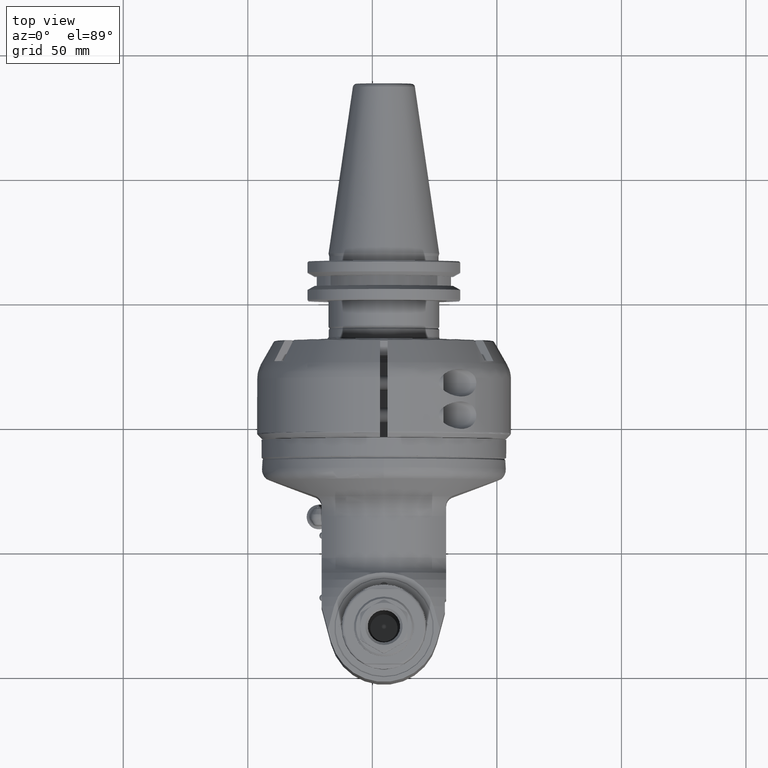
[diagram: clean part render]
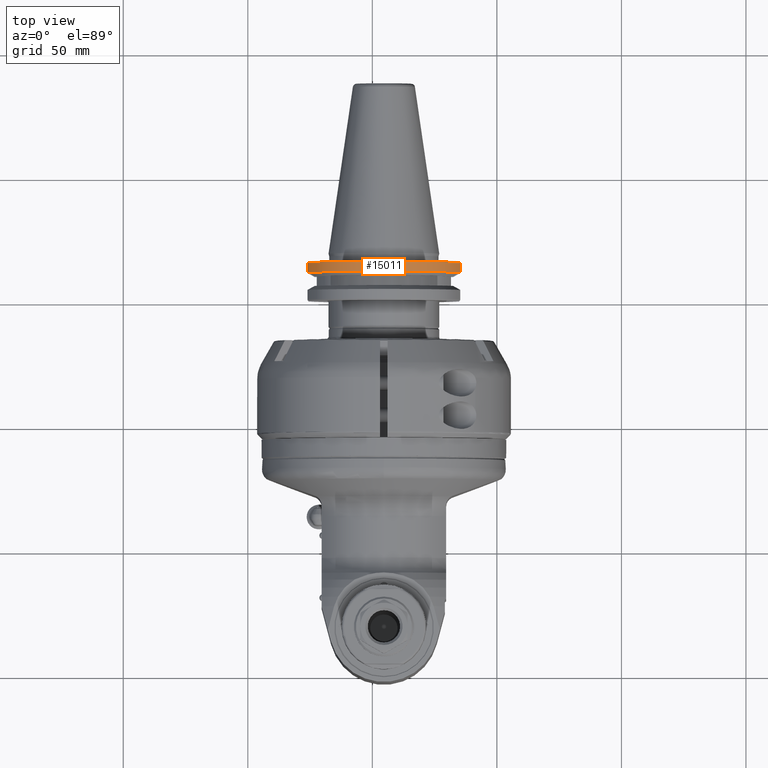
[diagram: same view with one face highlighted and labeled with its STEP entity id]
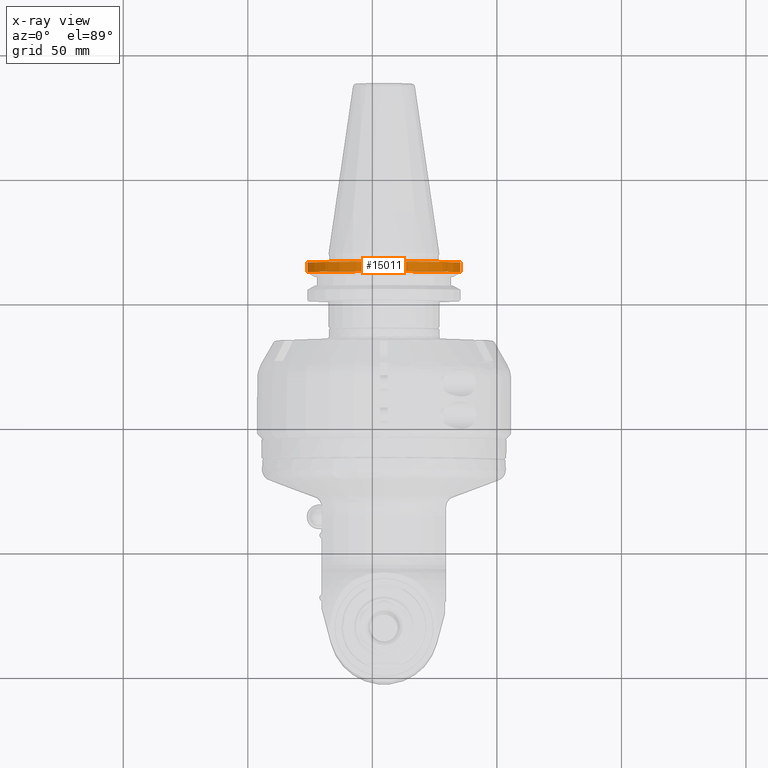
[diagram: x-ray of the same camera — body ghosted, the highlighted face saturated]
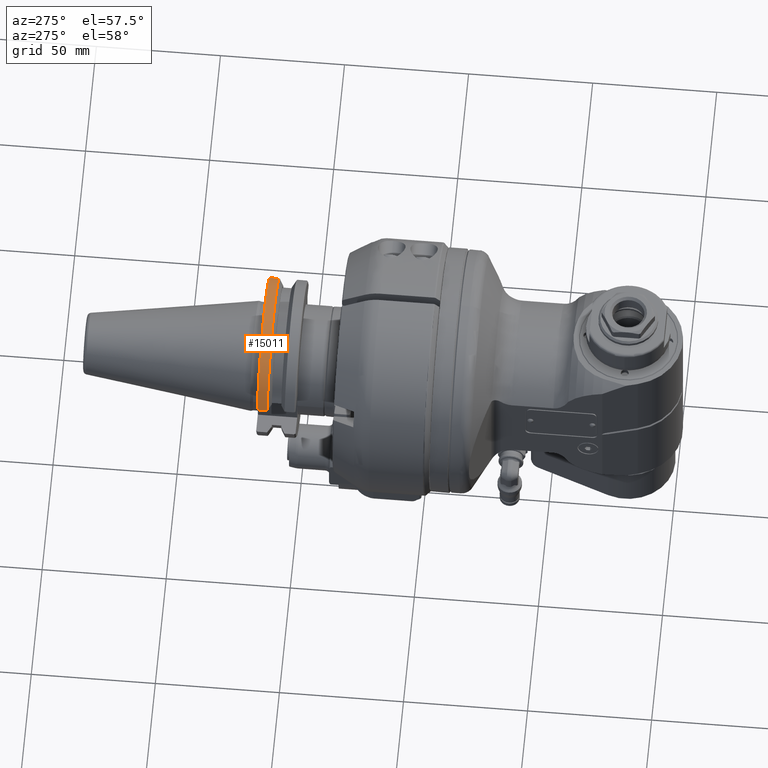
[diagram: same view with one face highlighted and labeled with its STEP entity id]
A machine part, top view. The second image highlights one B-rep face of the part: STEP entity #15011.
The next image is the same camera in x-ray: the body ghosted, the highlighted face saturated — about 0% of this face is hidden behind the body in this view.
A second angle (auxiliary view) of the same face is appended — the face is thin or edge-on in the first view.
In plain terms, the highlighted cylindrical surface (partial cylindrical patch) has radius 31.75 mm, axis along (0, -1, 0).
Its self-contained STEP definition (entity closure, byte-faithful):
#1733=LINE('',#29459,#2713);
#1739=LINE('',#29515,#2719);
#2713=VECTOR('',#20989,3.93332990993502);
#2719=VECTOR('',#21003,3.93332990956502);
#3011=CYLINDRICAL_SURFACE('',#16747,31.75);
#3859=FACE_OUTER_BOUND('',#4893,.T.);
#4893=EDGE_LOOP('',(#13468,#13469,#13470,#13471));
#5738=CIRCLE('',#16746,31.75);
#5739=CIRCLE('',#16748,31.75);
#7130=VERTEX_POINT('',#29451);
#7131=VERTEX_POINT('',#29458);
#7138=VERTEX_POINT('',#29494);
#7139=VERTEX_POINT('',#29514);
#9254=EDGE_CURVE('',#7131,#7130,#1733,.T.);
#9264=EDGE_CURVE('',#7139,#7138,#1739,.T.);
#9271=EDGE_CURVE('',#7139,#7130,#5738,.T.);
#9272=EDGE_CURVE('',#7131,#7138,#5739,.T.);
#13468=ORIENTED_EDGE('',*,*,#9264,.T.);
#13469=ORIENTED_EDGE('',*,*,#9272,.F.);
#13470=ORIENTED_EDGE('',*,*,#9254,.T.);
#13471=ORIENTED_EDGE('',*,*,#9271,.F.);
#15011=ADVANCED_FACE('',(#3859),#3011,.T.);
#16746=AXIS2_PLACEMENT_3D('',#29556,#21017,#21018);
#16747=AXIS2_PLACEMENT_3D('',#29557,#21019,#21020);
#16748=AXIS2_PLACEMENT_3D('',#29558,#21021,#21022);
#20989=DIRECTION('',(2.52357405636099E-8,0.999999999999995,-9.45014715626196E-8));
#21003=DIRECTION('',(2.52385658790599E-8,-0.999999999999995,9.45120561083395E-8));
#21017=DIRECTION('center_axis',(0.,1.,0.));
#21018=DIRECTION('ref_axis',(-0.96614491666623,0.,0.258000000000008));
#21019=DIRECTION('center_axis',(0.,-1.,0.));
#21020=DIRECTION('ref_axis',(1.,0.,0.));
#21021=DIRECTION('center_axis',(0.,-1.,0.));
#21022=DIRECTION('ref_axis',(0.96614491666623,0.,0.258000000000008));
#29451=CARTESIAN_POINT('',(30.67510110415,70.825,8.1915));
#29458=CARTESIAN_POINT('',(30.6751009778148,66.8916667879604,8.19150055390067));
#29459=CARTESIAN_POINT('',(30.67510100489,66.89167009006,8.191500371705));
#29494=CARTESIAN_POINT('',(-30.6751009773954,66.8916667873843,8.19150055412787));
#29514=CARTESIAN_POINT('',(-30.67510110415,70.825,8.1915));
#29515=CARTESIAN_POINT('',(-30.67510110415,70.825,8.1915));
#29556=CARTESIAN_POINT('Origin',(0.,70.825,0.));
#29557=CARTESIAN_POINT('Origin',(0.,63.3875,0.));
#29558=CARTESIAN_POINT('Origin',(0.,66.89166676908,0.));